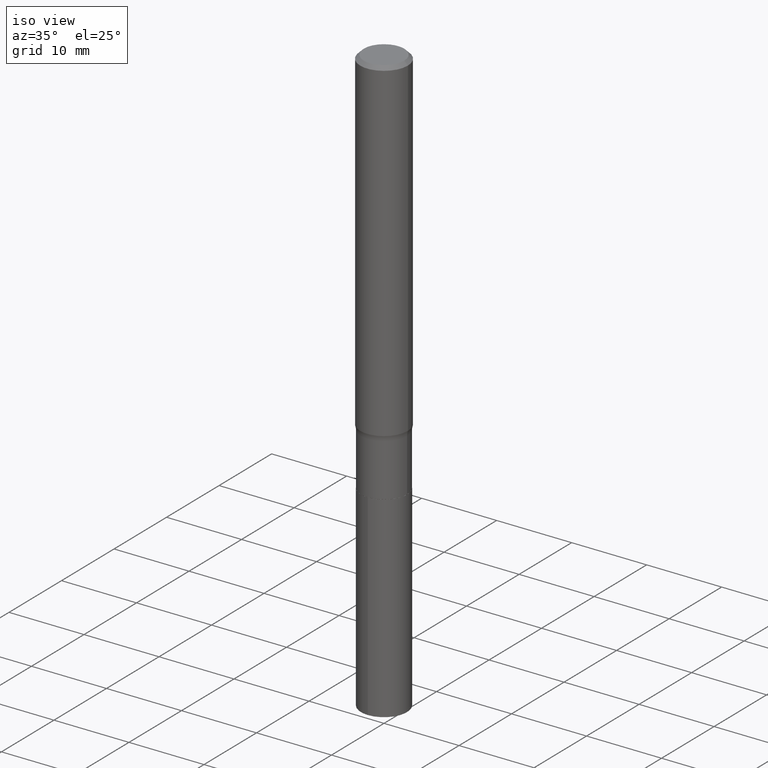
[diagram: clean part render]
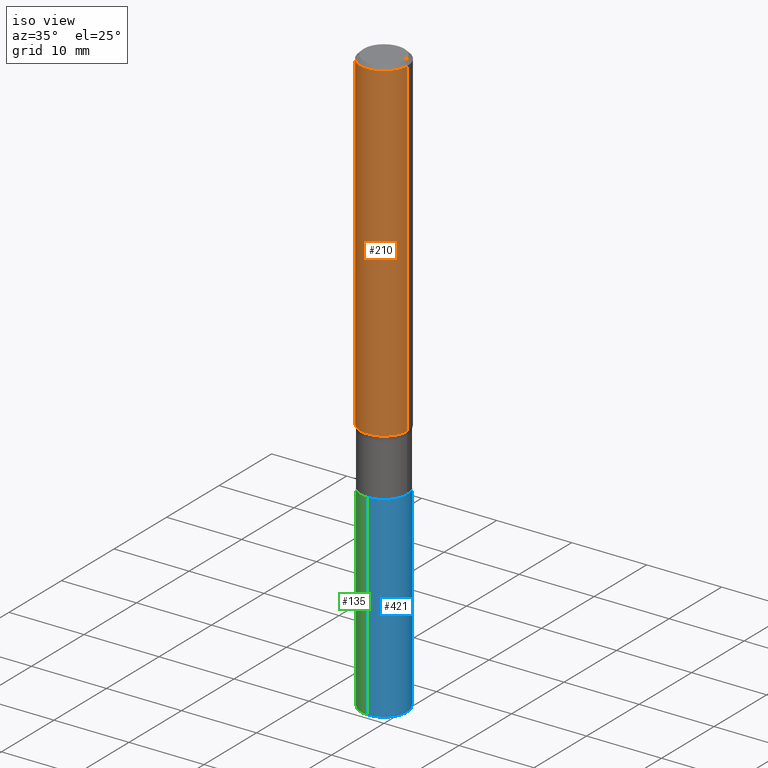
[diagram: same view with three faces highlighted in distinct colors, each labeled with its STEP entity id]
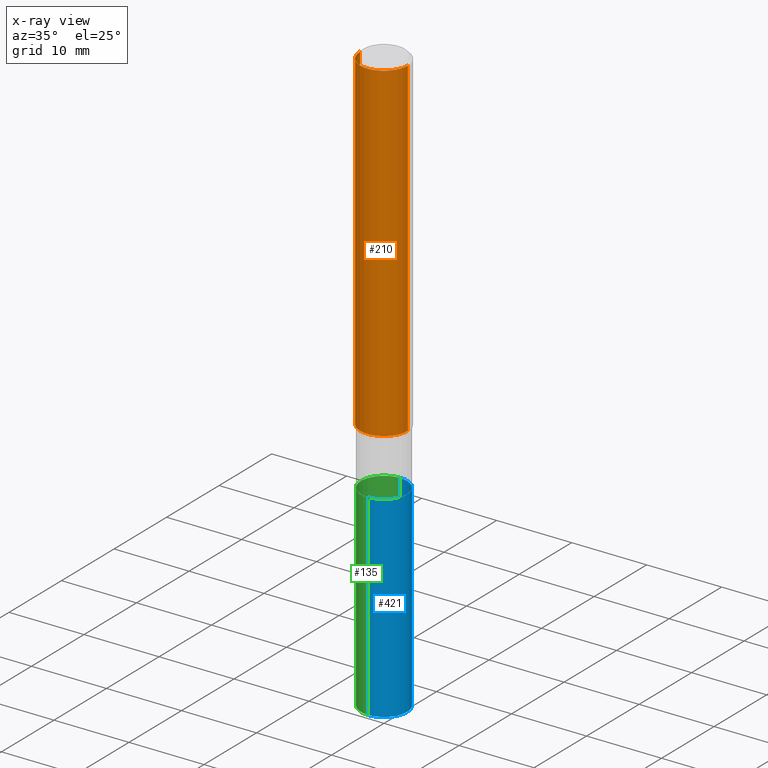
[diagram: x-ray of the same camera — body ghosted, the three highlighted faces saturated]
A machine part, iso view with three faces highlighted in distinct colors.
The next image is the same camera in x-ray (body ghosted, the three faces saturated) — at least one of them is partly hidden behind the body in this view.
Their STEP definitions:

[orange] entity #210 — the highlighted cylindrical surface (edge-blend (fillet) strip) has radius 3.175 mm, axis along (-0, 0, 1).
#1 = CARTESIAN_POINT ( 'NONE',  ( -0.1250000000000002498, -5.227298988527986876E-15, -1.751542343988123251 ) ) ;
#9 = DIRECTION ( 'NONE',  ( 1.000000000000000000, -6.982962677686265922E-15, 0.000000000000000000 ) ) ;
#11 = CARTESIAN_POINT ( 'NONE',  ( 4.585254011597165626E-31, -6.546527510330947764E-17, -0.01875000000000014155 ) ) ;
#27 = AXIS2_PLACEMENT_3D ( 'NONE', #88, #43, #453 ) ;
#43 = DIRECTION ( 'NONE',  ( -2.445468806185136597E-29, 3.491481338843145583E-15, 1.000000000000000000 ) ) ;
#53 = VERTEX_POINT ( 'NONE', #1 ) ;
#69 = EDGE_CURVE ( 'NONE', #391, #227, #446, .T. ) ;
#70 = CARTESIAN_POINT ( 'NONE',  ( 0.1250000000000001110, -8.728703347107842263E-16, 6.095220969744926047E-30 ) ) ;
#79 = DIRECTION ( 'NONE',  ( -2.445468806185136597E-29, 3.491481338843145583E-15, 1.000000000000000000 ) ) ;
#81 = ORIENTED_EDGE ( 'NONE', *, *, #238, .F. ) ;
#88 = CARTESIAN_POINT ( 'NONE',  ( 0.000000000000000000, 0.000000000000000000, 0.000000000000000000 ) ) ;
#98 = DIRECTION ( 'NONE',  ( -2.445468806185136877E-29, 3.491481338843145188E-15, 1.000000000000000000 ) ) ;
#114 = CARTESIAN_POINT ( 'NONE',  ( 4.283342164935351862E-29, -6.115477408228114475E-15, -1.751542343988123251 ) ) ;
#132 = CIRCLE ( 'NONE', #243, 0.1250000000000000278 ) ;
#151 = CARTESIAN_POINT ( 'NONE',  ( 0.1250000000000002498, -6.988347742938897814E-15, -1.751542343988123251 ) ) ;
#175 = EDGE_LOOP ( 'NONE', ( #312, #348, #465, #81 ) ) ;
#185 = VERTEX_POINT ( 'NONE', #204 ) ;
#189 = CYLINDRICAL_SURFACE ( 'NONE', #27, 0.1250000000000001110 ) ;
#204 = CARTESIAN_POINT ( 'NONE',  ( -0.1250000000000000278, -2.202292921965584605E-15, -0.01875000000000014155 ) ) ;
#210 = ADVANCED_FACE ( 'NONE', ( #268 ), #189, .T. ) ;
#225 = DIRECTION ( 'NONE',  ( -2.445468806185136877E-29, 3.491481338843145188E-15, 1.000000000000000000 ) ) ;
#227 = VERTEX_POINT ( 'NONE', #412 ) ;
#230 = DIRECTION ( 'NONE',  ( 1.000000000000000000, -6.982962677686265922E-15, 0.000000000000000000 ) ) ;
#238 = EDGE_CURVE ( 'NONE', #185, #227, #132, .T. ) ;
#241 = DIRECTION ( 'NONE',  ( -2.445468806185136597E-29, 3.491481338843145583E-15, 1.000000000000000000 ) ) ;
#243 = AXIS2_PLACEMENT_3D ( 'NONE', #11, #241, #9 ) ;
#261 = AXIS2_PLACEMENT_3D ( 'NONE', #114, #79, #230 ) ;
#268 = FACE_OUTER_BOUND ( 'NONE', #175, .T. ) ;
#297 = EDGE_CURVE ( 'NONE', #53, #391, #400, .T. ) ;
#312 = ORIENTED_EDGE ( 'NONE', *, *, #406, .F. ) ;
#335 = VECTOR ( 'NONE', #98, 39.37007874015748143 ) ;
#348 = ORIENTED_EDGE ( 'NONE', *, *, #297, .T. ) ;
#391 = VERTEX_POINT ( 'NONE', #151 ) ;
#400 = CIRCLE ( 'NONE', #261, 0.1250000000000002220 ) ;
#406 = EDGE_CURVE ( 'NONE', #53, #185, #491, .T. ) ;
#412 = CARTESIAN_POINT ( 'NONE',  ( 0.1250000000000000278, -9.383356098140928781E-16, -0.01875000000000014155 ) ) ;
#432 = VECTOR ( 'NONE', #225, 39.37007874015748143 ) ;
#435 = CARTESIAN_POINT ( 'NONE',  ( -0.1250000000000001110, 8.881784197001260212E-16, -6.148668862818637832E-30 ) ) ;
#446 = LINE ( 'NONE', #70, #432 ) ;
#453 = DIRECTION ( 'NONE',  ( 1.000000000000000000, -6.982962677686267499E-15, 4.876176775795936353E-29 ) ) ;
#465 = ORIENTED_EDGE ( 'NONE', *, *, #69, .T. ) ;
#491 = LINE ( 'NONE', #435, #335 ) ;

[blue] entity #421 — the highlighted cylindrical surface (edge-blend (fillet) strip) has radius 3.0734 mm, axis along (-0, 0, 1).
#7 = CIRCLE ( 'NONE', #28, 0.1210000000000000103 ) ;
#13 = EDGE_CURVE ( 'NONE', #128, #280, #184, .T. ) ;
#24 = EDGE_CURVE ( 'NONE', #280, #200, #334, .T. ) ;
#28 = AXIS2_PLACEMENT_3D ( 'NONE', #104, #403, #216 ) ;
#30 = DIRECTION ( 'NONE',  ( -6.982962677686264344E-15, -1.000000000000000000, 4.515451229197129137E-15 ) ) ;
#65 = DIRECTION ( 'NONE',  ( -2.445399369291198092E-29, 3.491580776427368164E-15, 1.000000000000000000 ) ) ;
#94 = VERTEX_POINT ( 'NONE', #102 ) ;
#102 = CARTESIAN_POINT ( 'NONE',  ( 8.597567102697963387E-16, 0.1209999999999891718, -3.086848846545643621 ) ) ;
#104 = CARTESIAN_POINT ( 'NONE',  ( 7.548720880538574593E-29, -1.077777779781897648E-14, -3.086848846545643177 ) ) ;
#118 = CARTESIAN_POINT ( 'NONE',  ( 8.597567102697967331E-16, 0.1209999999999928355, -2.054500000000000881 ) ) ;
#128 = VERTEX_POINT ( 'NONE', #177 ) ;
#133 = ORIENTED_EDGE ( 'NONE', *, *, #13, .F. ) ;
#137 = DIRECTION ( 'NONE',  ( -2.445399369291198092E-29, 3.491580776427368164E-15, 1.000000000000000000 ) ) ;
#138 = CARTESIAN_POINT ( 'NONE',  ( 5.024215662307363891E-29, -7.173248410653242943E-15, -2.054499999999999993 ) ) ;
#146 = CARTESIAN_POINT ( 'NONE',  ( 5.024215662307363891E-29, -7.173248410653242943E-15, -2.054499999999999993 ) ) ;
#150 = DIRECTION ( 'NONE',  ( -2.445399369291197811E-29, 3.491580776427368164E-15, 1.000000000000000000 ) ) ;
#177 = CARTESIAN_POINT ( 'NONE',  ( -8.449384839999622692E-16, -0.1210000000000107379, -3.086848846545642289 ) ) ;
#184 = LINE ( 'NONE', #371, #383 ) ;
#200 = VERTEX_POINT ( 'NONE', #118 ) ;
#205 = EDGE_LOOP ( 'NONE', ( #249, #273, #481, #133 ) ) ;
#216 = DIRECTION ( 'NONE',  ( -6.982962677686264344E-15, -1.000000000000000000, 4.515451229197129137E-15 ) ) ;
#234 = AXIS2_PLACEMENT_3D ( 'NONE', #146, #137, #405 ) ;
#249 = ORIENTED_EDGE ( 'NONE', *, *, #329, .T. ) ;
#250 = FACE_OUTER_BOUND ( 'NONE', #205, .T. ) ;
#273 = ORIENTED_EDGE ( 'NONE', *, *, #316, .T. ) ;
#280 = VERTEX_POINT ( 'NONE', #382 ) ;
#316 = EDGE_CURVE ( 'NONE', #94, #200, #434, .T. ) ;
#329 = EDGE_CURVE ( 'NONE', #128, #94, #7, .T. ) ;
#334 = CIRCLE ( 'NONE', #234, 0.1210000000000000103 ) ;
#363 = CYLINDRICAL_SURFACE ( 'NONE', #462, 0.1210000000000000103 ) ;
#371 = CARTESIAN_POINT ( 'NONE',  ( -8.449384839999879072E-16, -0.1210000000000071713, -2.054499999999999549 ) ) ;
#381 = CARTESIAN_POINT ( 'NONE',  ( 8.597567102697713909E-16, 0.1209999999999928355, -2.054500000000000881 ) ) ;
#382 = CARTESIAN_POINT ( 'NONE',  ( -8.449384839999879072E-16, -0.1210000000000071713, -2.054499999999999549 ) ) ;
#383 = VECTOR ( 'NONE', #150, 39.37007874015748143 ) ;
#389 = VECTOR ( 'NONE', #437, 39.37007874015748143 ) ;
#403 = DIRECTION ( 'NONE',  ( -2.445399369291198092E-29, 3.491580776427368164E-15, 1.000000000000000000 ) ) ;
#405 = DIRECTION ( 'NONE',  ( -6.982962677686264344E-15, -1.000000000000000000, 4.515451229197129137E-15 ) ) ;
#421 = ADVANCED_FACE ( 'NONE', ( #250 ), #363, .T. ) ;
#434 = LINE ( 'NONE', #381, #389 ) ;
#437 = DIRECTION ( 'NONE',  ( -2.445399369291197811E-29, 3.491580776427368164E-15, 1.000000000000000000 ) ) ;
#462 = AXIS2_PLACEMENT_3D ( 'NONE', #138, #65, #30 ) ;
#481 = ORIENTED_EDGE ( 'NONE', *, *, #24, .F. ) ;

[green] entity #135 — the highlighted cylindrical surface (edge-blend (fillet) strip) has radius 3.0734 mm, axis along (-0, 0, 1).
#13 = EDGE_CURVE ( 'NONE', #128, #280, #184, .T. ) ;
#22 = DIRECTION ( 'NONE',  ( -2.445399369291198092E-29, 3.491580776427368164E-15, 1.000000000000000000 ) ) ;
#37 = CYLINDRICAL_SURFACE ( 'NONE', #212, 0.1210000000000000103 ) ;
#57 = CARTESIAN_POINT ( 'NONE',  ( 5.024215662307363891E-29, -7.173248410653242943E-15, -2.054499999999999993 ) ) ;
#94 = VERTEX_POINT ( 'NONE', #102 ) ;
#95 = CARTESIAN_POINT ( 'NONE',  ( 7.548720880538574593E-29, -1.077777779781897648E-14, -3.086848846545643177 ) ) ;
#102 = CARTESIAN_POINT ( 'NONE',  ( 8.597567102697963387E-16, 0.1209999999999891718, -3.086848846545643621 ) ) ;
#118 = CARTESIAN_POINT ( 'NONE',  ( 8.597567102697967331E-16, 0.1209999999999928355, -2.054500000000000881 ) ) ;
#120 = CIRCLE ( 'NONE', #293, 0.1210000000000000103 ) ;
#121 = DIRECTION ( 'NONE',  ( -2.445399369291198092E-29, 3.491580776427368164E-15, 1.000000000000000000 ) ) ;
#127 = ORIENTED_EDGE ( 'NONE', *, *, #439, .F. ) ;
#128 = VERTEX_POINT ( 'NONE', #177 ) ;
#135 = ADVANCED_FACE ( 'NONE', ( #337 ), #37, .T. ) ;
#141 = DIRECTION ( 'NONE',  ( -2.445399369291198092E-29, 3.491580776427368164E-15, 1.000000000000000000 ) ) ;
#150 = DIRECTION ( 'NONE',  ( -2.445399369291197811E-29, 3.491580776427368164E-15, 1.000000000000000000 ) ) ;
#170 = DIRECTION ( 'NONE',  ( -6.982962677686264344E-15, -1.000000000000000000, 4.515451229197129137E-15 ) ) ;
#177 = CARTESIAN_POINT ( 'NONE',  ( -8.449384839999622692E-16, -0.1210000000000107379, -3.086848846545642289 ) ) ;
#184 = LINE ( 'NONE', #371, #383 ) ;
#193 = CIRCLE ( 'NONE', #267, 0.1210000000000000103 ) ;
#194 = CARTESIAN_POINT ( 'NONE',  ( 5.024215662307363891E-29, -7.173248410653242943E-15, -2.054499999999999993 ) ) ;
#200 = VERTEX_POINT ( 'NONE', #118 ) ;
#212 = AXIS2_PLACEMENT_3D ( 'NONE', #194, #121, #423 ) ;
#245 = ORIENTED_EDGE ( 'NONE', *, *, #316, .F. ) ;
#251 = ORIENTED_EDGE ( 'NONE', *, *, #466, .T. ) ;
#267 = AXIS2_PLACEMENT_3D ( 'NONE', #57, #141, #390 ) ;
#274 = EDGE_LOOP ( 'NONE', ( #245, #251, #294, #127 ) ) ;
#280 = VERTEX_POINT ( 'NONE', #382 ) ;
#293 = AXIS2_PLACEMENT_3D ( 'NONE', #95, #22, #170 ) ;
#294 = ORIENTED_EDGE ( 'NONE', *, *, #13, .T. ) ;
#316 = EDGE_CURVE ( 'NONE', #94, #200, #434, .T. ) ;
#337 = FACE_OUTER_BOUND ( 'NONE', #274, .T. ) ;
#371 = CARTESIAN_POINT ( 'NONE',  ( -8.449384839999879072E-16, -0.1210000000000071713, -2.054499999999999549 ) ) ;
#381 = CARTESIAN_POINT ( 'NONE',  ( 8.597567102697713909E-16, 0.1209999999999928355, -2.054500000000000881 ) ) ;
#382 = CARTESIAN_POINT ( 'NONE',  ( -8.449384839999879072E-16, -0.1210000000000071713, -2.054499999999999549 ) ) ;
#383 = VECTOR ( 'NONE', #150, 39.37007874015748143 ) ;
#389 = VECTOR ( 'NONE', #437, 39.37007874015748143 ) ;
#390 = DIRECTION ( 'NONE',  ( -6.982962677686264344E-15, -1.000000000000000000, 4.515451229197129137E-15 ) ) ;
#423 = DIRECTION ( 'NONE',  ( -6.982962677686264344E-15, -1.000000000000000000, 4.515451229197129137E-15 ) ) ;
#434 = LINE ( 'NONE', #381, #389 ) ;
#437 = DIRECTION ( 'NONE',  ( -2.445399369291197811E-29, 3.491580776427368164E-15, 1.000000000000000000 ) ) ;
#439 = EDGE_CURVE ( 'NONE', #200, #280, #193, .T. ) ;
#466 = EDGE_CURVE ( 'NONE', #94, #128, #120, .T. ) ;